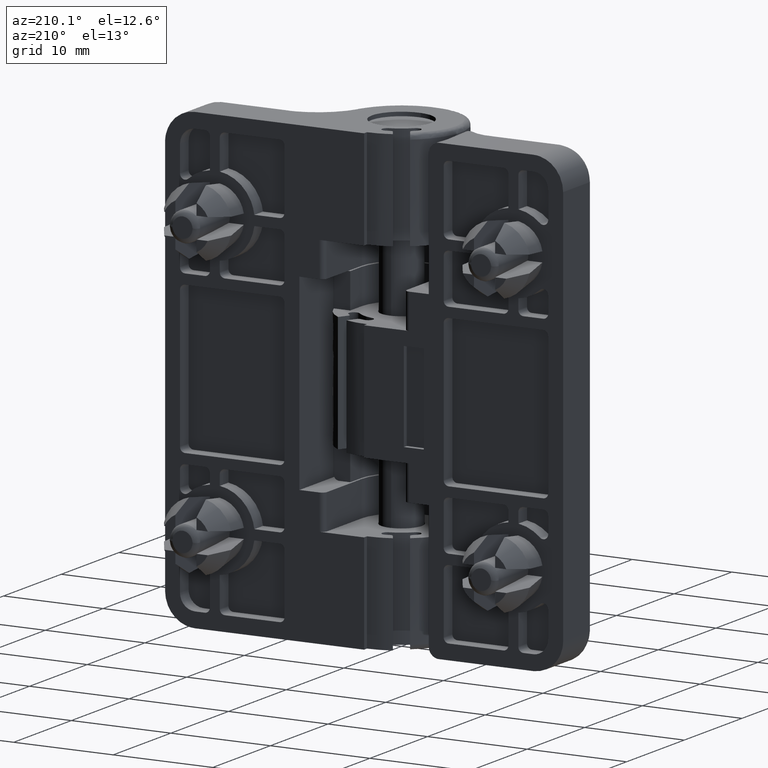
[diagram: clean part render]
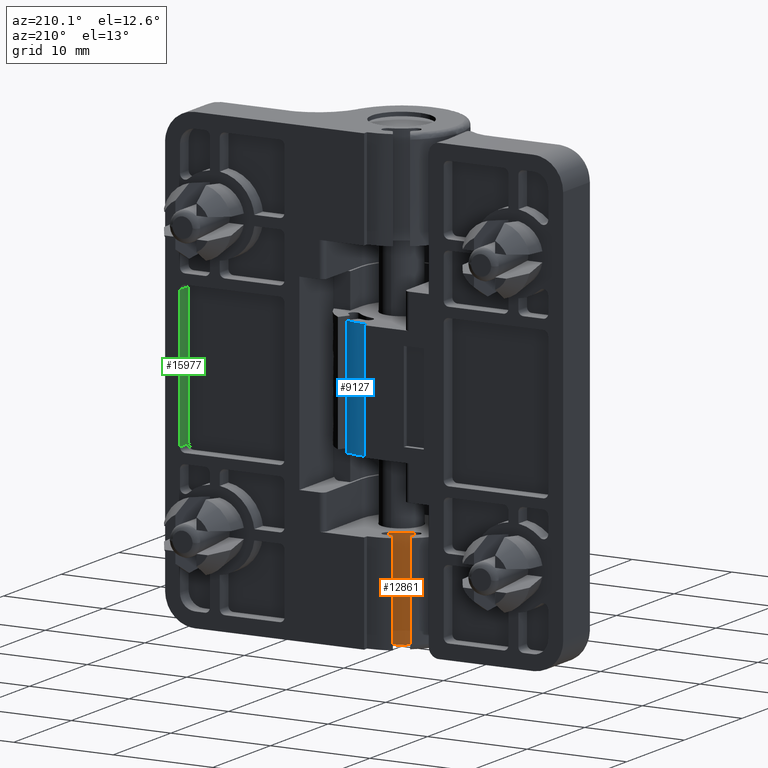
[diagram: same view with three faces highlighted in distinct colors, each labeled with its STEP entity id]
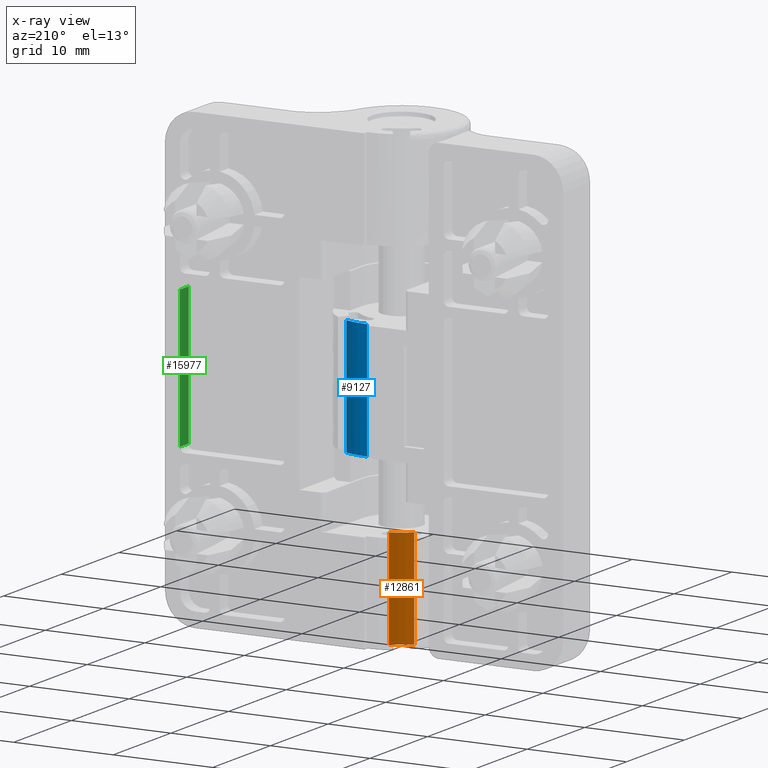
[diagram: x-ray of the same camera — body ghosted, the three highlighted faces saturated]
A machine part, auxiliary view with three faces highlighted in distinct colors.
The next image is the same camera in x-ray (body ghosted, the three faces saturated) — at least one of them is partly hidden behind the body in this view.
Their STEP definitions:

[orange] entity #12861 — the highlighted face is a freeform B-spline surface patch.
#12763=CARTESIAN_POINT('',(-0.836892217379883,3.655422194000850,-12.999999999974261));
#12764=VERTEX_POINT('',#12763);
#12765=CARTESIAN_POINT('',(-0.836892217379876,3.655422194000825,-23.000000000025651));
#12766=VERTEX_POINT('',#12765);
#12767=CARTESIAN_POINT('',(-0.836892217379883,3.655422194000850,-12.999999999974261));
#12768=CARTESIAN_POINT('',(-0.836892217379876,3.655422194000825,-23.000000000025651));
#12769=QUASI_UNIFORM_CURVE('',1,(#12767,#12768),.UNSPECIFIED.,.F.,.U.);
#12770=EDGE_CURVE('',#12764,#12766,#12769,.T.);
#12809=CARTESIAN_POINT('',(-0.729714493803628,3.678317109419731,-12.749999999972973));
#12810=CARTESIAN_POINT('',(-0.729714493803628,3.678317109419731,-23.256250000026981));
#12811=CARTESIAN_POINT('',(-1.980790961461572,3.430125177016714,-12.749999999972978));
#12812=CARTESIAN_POINT('',(-1.980790961461572,3.430125177016714,-23.256250000026977));
#12813=CARTESIAN_POINT('',(-2.821098847026768,2.470607474890085,-12.749999999972975));
#12814=CARTESIAN_POINT('',(-2.821098847026768,2.470607474890085,-23.256250000026970));
#12822=(BOUNDED_SURFACE()B_SPLINE_SURFACE(1,2,((#12809,#12811,#12813),(#12810,#12812,#12814)),.UNSPECIFIED.,.F.,.F.,.U.)B_SPLINE_SURFACE_WITH_KNOTS((2,2),(3,3),(0.0,10.506250000053999),(0.0,2.481115711308640),.UNSPECIFIED.)GEOMETRIC_REPRESENTATION_ITEM()RATIONAL_B_SPLINE_SURFACE(((0.998086998041844,0.941931653237097,0.991770493075150),(0.998086998041844,0.941931653237097,0.991770493075150)))REPRESENTATION_ITEM('')SURFACE());
#12823=CARTESIAN_POINT('',(-2.747242372786695,2.552481017530255,-12.999999999974261));
#12824=VERTEX_POINT('',#12823);
#12825=CARTESIAN_POINT('',(-0.836892217379876,3.655422194000824,-12.999999999974261));
#12826=CARTESIAN_POINT('',(-1.961770637426110,3.397886416917566,-12.999999999974257));
#12827=CARTESIAN_POINT('',(-2.747242372786696,2.552481017530255,-12.999999999974261));
#12835=(BOUNDED_CURVE()B_SPLINE_CURVE(2,(#12825,#12826,#12827),.UNSPECIFIED.,.F.,.U.)CURVE()GEOMETRIC_REPRESENTATION_ITEM()QUASI_UNIFORM_CURVE()RATIONAL_B_SPLINE_CURVE((1.0,0.955769224074820,1.0))REPRESENTATION_ITEM(''));
#12836=EDGE_CURVE('',#12764,#12824,#12835,.T.);
#12837=ORIENTED_EDGE('',*,*,#12836,.F.);
#12838=ORIENTED_EDGE('',*,*,#12770,.T.);
#12839=CARTESIAN_POINT('',(-2.747242372786680,2.552481017530245,-23.000000000025651));
#12840=VERTEX_POINT('',#12839);
#12841=CARTESIAN_POINT('',(-0.836892217379876,3.655422194000824,-23.000000000025651));
#12842=CARTESIAN_POINT('',(-1.961770637426108,3.397886416917566,-23.000000000025647));
#12843=CARTESIAN_POINT('',(-2.747242372786694,2.552481017530258,-23.000000000025651));
#12851=(BOUNDED_CURVE()B_SPLINE_CURVE(2,(#12841,#12842,#12843),.UNSPECIFIED.,.F.,.U.)CURVE()GEOMETRIC_REPRESENTATION_ITEM()QUASI_UNIFORM_CURVE()RATIONAL_B_SPLINE_CURVE((1.0,0.955769224074820,1.0))REPRESENTATION_ITEM(''));
#12852=EDGE_CURVE('',#12766,#12840,#12851,.T.);
#12853=ORIENTED_EDGE('',*,*,#12852,.T.);
#12854=CARTESIAN_POINT('',(-2.747242372786695,2.552481017530255,-12.999999999974261));
#12855=CARTESIAN_POINT('',(-2.747242372786680,2.552481017530245,-23.000000000025651));
#12856=QUASI_UNIFORM_CURVE('',1,(#12854,#12855),.UNSPECIFIED.,.F.,.U.);
#12857=EDGE_CURVE('',#12824,#12840,#12856,.T.);
#12858=ORIENTED_EDGE('',*,*,#12857,.F.);
#12859=EDGE_LOOP('',(#12837,#12838,#12853,#12858));
#12860=FACE_OUTER_BOUND('',#12859,.T.);
#12861=ADVANCED_FACE('',(#12860),#12822,.T.);

[blue] entity #9127 — the highlighted face is a freeform B-spline surface patch.
#9052=CARTESIAN_POINT('',(2.326951172166260,5.530397656825331,5.899999999998240));
#9053=VERTEX_POINT('',#9052);
#9054=CARTESIAN_POINT('',(2.326951172166260,5.530397656825331,-5.899999999998240));
#9055=VERTEX_POINT('',#9054);
#9056=CARTESIAN_POINT('',(2.326951172166260,5.530397656825331,5.899999999998240));
#9057=CARTESIAN_POINT('',(2.326951172166260,5.530397656825331,-5.899999999998240));
#9058=QUASI_UNIFORM_CURVE('',1,(#9056,#9057),.UNSPECIFIED.,.F.,.U.);
#9059=EDGE_CURVE('',#9053,#9055,#9058,.T.);
#9075=CARTESIAN_POINT('',(2.435394605564008,5.483507373521720,6.194999999998152));
#9076=CARTESIAN_POINT('',(2.435394605564008,5.483507373521720,-6.202374999998149));
#9077=CARTESIAN_POINT('',(1.215635405456590,6.025240022647600,6.194999999998154));
#9078=CARTESIAN_POINT('',(1.215635405456590,6.025240022647600,-6.202374999998150));
#9079=CARTESIAN_POINT('',(-0.118751720228957,5.998824720637296,6.194999999998153));
#9080=CARTESIAN_POINT('',(-0.118751720228957,5.998824720637296,-6.202374999998150));
#9088=(BOUNDED_SURFACE()B_SPLINE_SURFACE(1,2,((#9075,#9077,#9079),(#9076,#9078,#9080)),.UNSPECIFIED.,.F.,.F.,.U.)B_SPLINE_SURFACE_WITH_KNOTS((2,2),(3,3),(0.0,12.397374999996300),(0.0,2.637065408325419),.UNSPECIFIED.)GEOMETRIC_REPRESENTATION_ITEM()RATIONAL_B_SPLINE_SURFACE(((0.998797560274446,0.972341229961394,0.993422917133977),(0.998797560274446,0.972341229961394,0.993422917133977)))REPRESENTATION_ITEM('')SURFACE());
#9089=CARTESIAN_POINT('',(4.072564E-011,6.0,5.899999999998240));
#9090=VERTEX_POINT('',#9089);
#9091=CARTESIAN_POINT('',(4.072831E-011,6.0,-5.899999999998240));
#9092=VERTEX_POINT('',#9091);
#9093=CARTESIAN_POINT('',(4.072564E-011,6.0,5.899999999998240));
#9094=CARTESIAN_POINT('',(4.072831E-011,6.0,-5.899999999998240));
#9095=QUASI_UNIFORM_CURVE('',1,(#9093,#9094),.UNSPECIFIED.,.F.,.U.);
#9096=EDGE_CURVE('',#9090,#9092,#9095,.T.);
#9097=ORIENTED_EDGE('',*,*,#9096,.F.);
#9098=CARTESIAN_POINT('',(4.072617E-011,6.0,5.899999999998240));
#9099=CARTESIAN_POINT('',(1.210860843551069,6.000000000003273,5.899999999998240));
#9100=CARTESIAN_POINT('',(2.326951172166259,5.530397656825328,5.899999999998240));
#9108=(BOUNDED_CURVE()B_SPLINE_CURVE(2,(#9098,#9099,#9100),.UNSPECIFIED.,.F.,.U.)CURVE()GEOMETRIC_REPRESENTATION_ITEM()QUASI_UNIFORM_CURVE()RATIONAL_B_SPLINE_CURVE((1.0,0.980237966721136,1.0))REPRESENTATION_ITEM(''));
#9109=EDGE_CURVE('',#9090,#9053,#9108,.T.);
#9110=ORIENTED_EDGE('',*,*,#9109,.T.);
#9111=ORIENTED_EDGE('',*,*,#9059,.T.);
#9112=CARTESIAN_POINT('',(2.326951172166259,5.530397656825328,-5.899999999998240));
#9113=CARTESIAN_POINT('',(1.210860843551070,6.000000000003272,-5.899999999998240));
#9114=CARTESIAN_POINT('',(4.072823E-011,6.0,-5.899999999998240));
#9122=(BOUNDED_CURVE()B_SPLINE_CURVE(2,(#9112,#9113,#9114),.UNSPECIFIED.,.F.,.U.)CURVE()GEOMETRIC_REPRESENTATION_ITEM()QUASI_UNIFORM_CURVE()RATIONAL_B_SPLINE_CURVE((1.0,0.980237966721136,1.0))REPRESENTATION_ITEM(''));
#9123=EDGE_CURVE('',#9055,#9092,#9122,.T.);
#9124=ORIENTED_EDGE('',*,*,#9123,.T.);
#9125=EDGE_LOOP('',(#9097,#9110,#9111,#9124));
#9126=FACE_OUTER_BOUND('',#9125,.T.);
#9127=ADVANCED_FACE('',(#9126),#9088,.T.);

[green] entity #15977 — the highlighted face is a freeform B-spline surface patch.
#15863=CARTESIAN_POINT('',(18.499999999928150,5.000000000053520,6.999999999948210));
#15864=VERTEX_POINT('',#15863);
#15878=CARTESIAN_POINT('',(18.499999999847049,5.000000000053520,-7.000000000051800));
#15879=VERTEX_POINT('',#15878);
#15880=CARTESIAN_POINT('',(18.499999999928150,5.000000000053520,6.999999999948210));
#15881=CARTESIAN_POINT('',(18.499999999847049,5.000000000053520,-7.000000000051800));
#15882=QUASI_UNIFORM_CURVE('',1,(#15880,#15881),.UNSPECIFIED.,.F.,.U.);
#15883=EDGE_CURVE('',#15864,#15879,#15882,.T.);
#15950=CARTESIAN_POINT('',(18.499999999932200,4.925075002960814,7.699299972813495));
#15951=CARTESIAN_POINT('',(18.499999999842981,4.925075002960814,-7.699300348426346));
#15952=CARTESIAN_POINT('',(18.499999999932200,6.574925037379301,7.699299972813495));
#15953=CARTESIAN_POINT('',(18.499999999842981,6.574925037379301,-7.699300348426346));
#15954=B_SPLINE_SURFACE_WITH_KNOTS('',1,1,((#15950,#15952),(#15951,#15953)),.UNSPECIFIED.,.F.,.F.,.U.,(2,2),(2,2),(0.0,15.398600321239840),(0.041708334948495,0.958291687403247),.UNSPECIFIED.);
#15955=CARTESIAN_POINT('',(18.499999999928150,6.500000000049500,6.999999999948161));
#15956=VERTEX_POINT('',#15955);
#15957=CARTESIAN_POINT('',(18.499999999847049,6.500000000053460,-7.000000000051800));
#15958=VERTEX_POINT('',#15957);
#15959=CARTESIAN_POINT('',(18.499999999928150,6.500000000049500,6.999999999948161));
#15960=CARTESIAN_POINT('',(18.499999999847049,6.500000000053460,-7.000000000051800));
#15961=QUASI_UNIFORM_CURVE('',1,(#15959,#15960),.UNSPECIFIED.,.F.,.U.);
#15962=EDGE_CURVE('',#15956,#15958,#15961,.T.);
#15963=ORIENTED_EDGE('',*,*,#15962,.T.);
#15964=CARTESIAN_POINT('',(18.499999999847049,5.000000000053520,-7.000000000051800));
#15965=CARTESIAN_POINT('',(18.499999999847049,6.500000000053460,-7.000000000051800));
#15966=QUASI_UNIFORM_CURVE('',1,(#15964,#15965),.UNSPECIFIED.,.F.,.U.);
#15967=EDGE_CURVE('',#15879,#15958,#15966,.T.);
#15968=ORIENTED_EDGE('',*,*,#15967,.F.);
#15969=ORIENTED_EDGE('',*,*,#15883,.F.);
#15970=CARTESIAN_POINT('',(18.499999999928150,5.000000000053520,6.999999999948210));
#15971=CARTESIAN_POINT('',(18.499999999928150,6.500000000049500,6.999999999948161));
#15972=QUASI_UNIFORM_CURVE('',1,(#15970,#15971),.UNSPECIFIED.,.F.,.U.);
#15973=EDGE_CURVE('',#15864,#15956,#15972,.T.);
#15974=ORIENTED_EDGE('',*,*,#15973,.T.);
#15975=EDGE_LOOP('',(#15963,#15968,#15969,#15974));
#15976=FACE_OUTER_BOUND('',#15975,.T.);
#15977=ADVANCED_FACE('',(#15976),#15954,.F.);